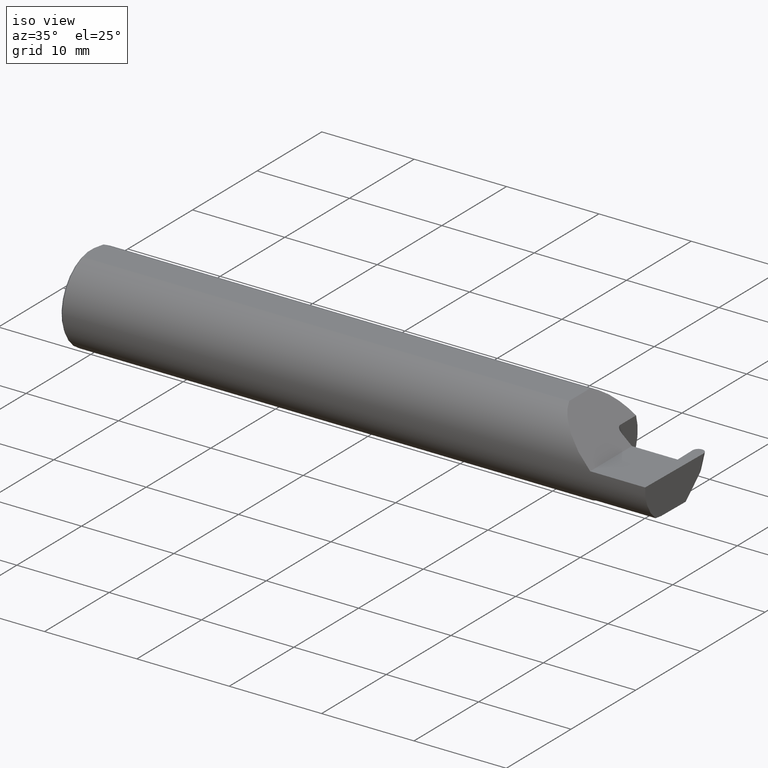
[diagram: clean part render]
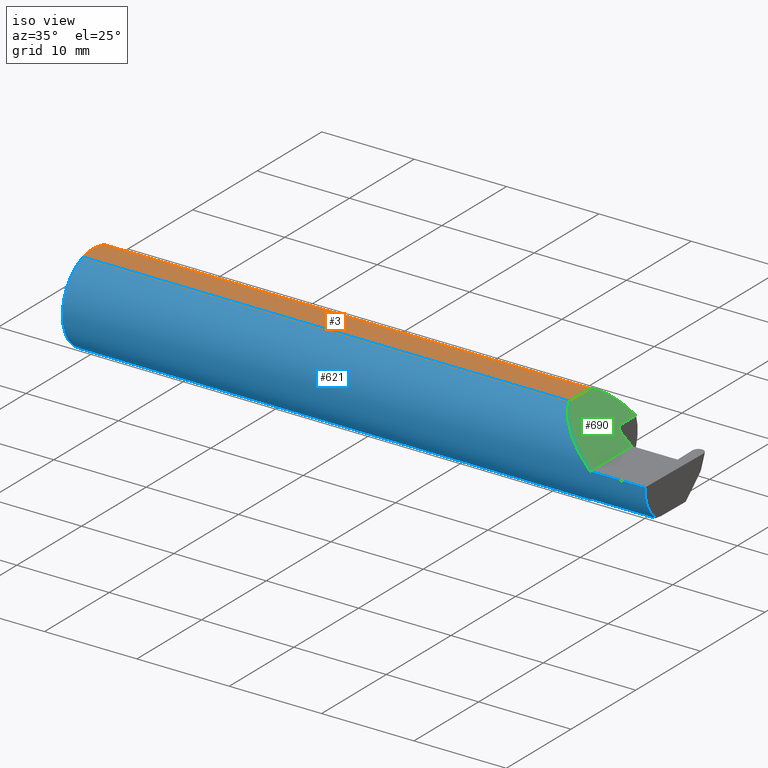
[diagram: same view with three faces highlighted in distinct colors, each labeled with its STEP entity id]
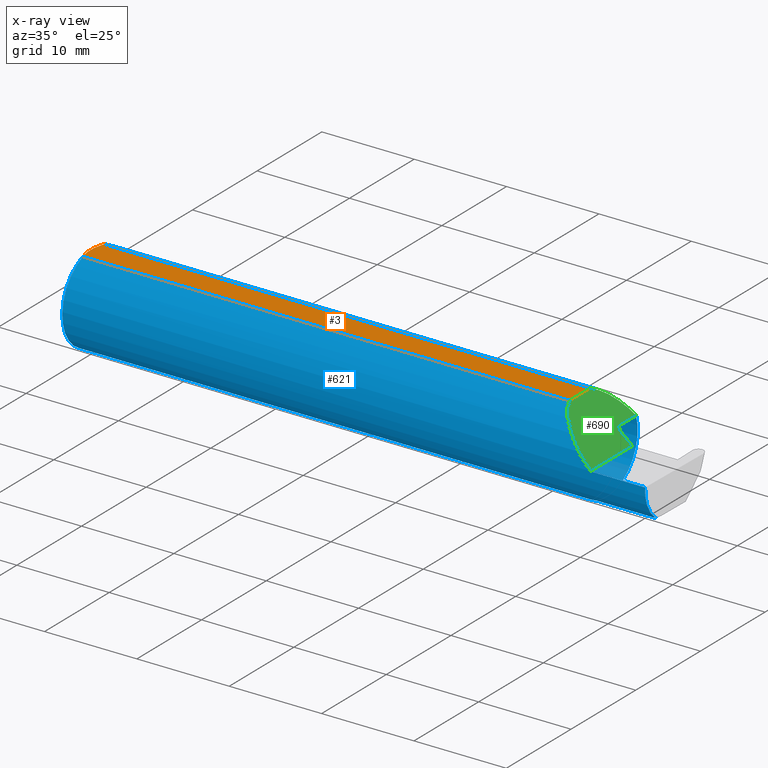
[diagram: x-ray of the same camera — body ghosted, the three highlighted faces saturated]
A machine part, iso view with three faces highlighted in distinct colors.
The next image is the same camera in x-ray (body ghosted, the three faces saturated) — at least one of them is partly hidden behind the body in this view.
Their STEP definitions:

[orange] entity #3 — the highlighted planar face has unit normal (0, 0, 1).
#2 = ORIENTED_EDGE ( 'NONE', *, *, #686, .T. ) ;
#3 = ADVANCED_FACE ( 'NONE', ( #466 ), #675, .T. ) ;
#14 = VECTOR ( 'NONE', #211, 39.37007874015748143 ) ;
#25 = VECTOR ( 'NONE', #32, 39.37007874015748143 ) ;
#27 = VERTEX_POINT ( 'NONE', #37 ) ;
#31 = EDGE_CURVE ( 'NONE', #56, #67, #92, .T. ) ;
#32 = DIRECTION ( 'NONE',  ( 1.000000000000000000, 0.000000000000000000, 0.000000000000000000 ) ) ;
#37 = CARTESIAN_POINT ( 'NONE',  ( 0.000000000000000000, -0.01880691362239451242, 0.1763499999999999235 ) ) ;
#56 = VERTEX_POINT ( 'NONE', #678 ) ;
#67 = VERTEX_POINT ( 'NONE', #409 ) ;
#92 = LINE ( 'NONE', #309, #535 ) ;
#99 = CARTESIAN_POINT ( 'NONE',  ( 0.000000000000000000, 0.01880691362239451242, 0.1763499999999999235 ) ) ;
#108 = VECTOR ( 'NONE', #578, 39.37007874015748143 ) ;
#116 = CARTESIAN_POINT ( 'NONE',  ( 2.083649999999998670, -0.2500000000000000555, 0.1763499999999999235 ) ) ;
#124 = ORIENTED_EDGE ( 'NONE', *, *, #144, .F. ) ;
#144 = EDGE_CURVE ( 'NONE', #287, #27, #256, .T. ) ;
#150 = CARTESIAN_POINT ( 'NONE',  ( 2.876828993045917215, 0.1873499999999998500, 0.1763499999999999235 ) ) ;
#155 = CARTESIAN_POINT ( 'NONE',  ( 0.000000000000000000, 0.01880691362239451242, 0.1763499999999999235 ) ) ;
#163 = CARTESIAN_POINT ( 'NONE',  ( 0.000000000000000000, -0.01880691362239451242, 0.1763499999999999235 ) ) ;
#182 = ORIENTED_EDGE ( 'NONE', *, *, #507, .T. ) ;
#211 = DIRECTION ( 'NONE',  ( 0.000000000000000000, 1.000000000000000000, 0.000000000000000000 ) ) ;
#226 = ORIENTED_EDGE ( 'NONE', *, *, #31, .T. ) ;
#244 = DIRECTION ( 'NONE',  ( -1.000000000000000000, -0.000000000000000000, -0.000000000000000000 ) ) ;
#249 = DIRECTION ( 'NONE',  ( 0.000000000000000000, 0.000000000000000000, 1.000000000000000000 ) ) ;
#256 = B_SPLINE_CURVE_WITH_KNOTS ( 'NONE', 3,
 ( #425, #652, #316, #163 ),
 .UNSPECIFIED., .F., .F.,
 ( 4, 4 ),
 ( 0.009771445421851449736, 0.01092787937989102981 ),
 .UNSPECIFIED. ) ;
#284 = B_SPLINE_CURVE_WITH_KNOTS ( 'NONE', 3,
 ( #99, #499, #531, #434 ),
 .UNSPECIFIED., .F., .F.,
 ( 4, 4 ),
 ( 0.01188664626022267051, 0.01304646959483758001 ),
 .UNSPECIFIED. ) ;
#287 = VERTEX_POINT ( 'NONE', #335 ) ;
#306 = ORIENTED_EDGE ( 'NONE', *, *, #418, .F. ) ;
#309 = CARTESIAN_POINT ( 'NONE',  ( 0.000000000000000000, 0.06325108694718235836, 0.1763499999999999235 ) ) ;
#316 = CARTESIAN_POINT ( 'NONE',  ( 0.001595548104417217512, -0.03385300050298979679, 0.1763499999999999235 ) ) ;
#335 = CARTESIAN_POINT ( 'NONE',  ( 0.009999999999999346217, -0.06325108694718235836, 0.1763499999999999235 ) ) ;
#371 = CARTESIAN_POINT ( 'NONE',  ( 0.000000000000000000, 0.1873499999999998500, 0.1763499999999999235 ) ) ;
#398 = LINE ( 'NONE', #419, #25 ) ;
#401 = CARTESIAN_POINT ( 'NONE',  ( 2.083649999999998670, -0.06325108694718283020, 0.1763499999999999235 ) ) ;
#409 = CARTESIAN_POINT ( 'NONE',  ( 0.009999999999999346217, 0.06325108694718235836, 0.1763499999999999235 ) ) ;
#418 = EDGE_CURVE ( 'NONE', #27, #516, #693, .T. ) ;
#419 = CARTESIAN_POINT ( 'NONE',  ( 0.000000000000000000, -0.06325108694718235836, 0.1763499999999999235 ) ) ;
#425 = CARTESIAN_POINT ( 'NONE',  ( 0.009999999999999346217, -0.06325108694718235836, 0.1763499999999999235 ) ) ;
#434 = CARTESIAN_POINT ( 'NONE',  ( 0.009999999999999346217, 0.06325108694718235836, 0.1763499999999999235 ) ) ;
#466 = FACE_OUTER_BOUND ( 'NONE', #620, .T. ) ;
#478 = DIRECTION ( 'NONE',  ( 1.000000000000000000, 0.000000000000000000, -0.000000000000000000 ) ) ;
#495 = EDGE_CURVE ( 'NONE', #516, #67, #284, .T. ) ;
#499 = CARTESIAN_POINT ( 'NONE',  ( 0.001616639753276218755, 0.03405189565400963680, 0.1763499999999999235 ) ) ;
#507 = EDGE_CURVE ( 'NONE', #608, #56, #699, .T. ) ;
#513 = ORIENTED_EDGE ( 'NONE', *, *, #495, .F. ) ;
#516 = VERTEX_POINT ( 'NONE', #155 ) ;
#518 = AXIS2_PLACEMENT_3D ( 'NONE', #150, #249, #478 ) ;
#531 = CARTESIAN_POINT ( 'NONE',  ( 0.005155213631852355663, 0.04890080824240217866, 0.1763499999999999235 ) ) ;
#535 = VECTOR ( 'NONE', #244, 39.37007874015748143 ) ;
#578 = DIRECTION ( 'NONE',  ( -0.000000000000000000, 1.000000000000000000, -0.000000000000000000 ) ) ;
#608 = VERTEX_POINT ( 'NONE', #401 ) ;
#620 = EDGE_LOOP ( 'NONE', ( #2, #182, #226, #513, #306, #124 ) ) ;
#652 = CARTESIAN_POINT ( 'NONE',  ( 0.005151108632379595466, -0.04888864921576189376, 0.1763499999999999235 ) ) ;
#675 = PLANE ( 'NONE',  #518 ) ;
#678 = CARTESIAN_POINT ( 'NONE',  ( 2.083649999999998670, 0.06325108694718283020, 0.1763499999999999235 ) ) ;
#686 = EDGE_CURVE ( 'NONE', #287, #608, #398, .T. ) ;
#693 = LINE ( 'NONE', #371, #108 ) ;
#699 = LINE ( 'NONE', #116, #14 ) ;

[blue] entity #621 — the highlighted cylindrical surface (partial cylindrical patch) has radius 4.7587 mm, axis along (-1, -0, -0).
#25 = VECTOR ( 'NONE', #32, 39.37007874015748143 ) ;
#30 = CARTESIAN_POINT ( 'NONE',  ( 2.083649999999998670, 0.06325108694718283020, 0.1763499999999999235 ) ) ;
#31 = EDGE_CURVE ( 'NONE', #56, #67, #92, .T. ) ;
#32 = DIRECTION ( 'NONE',  ( 1.000000000000000000, 0.000000000000000000, 0.000000000000000000 ) ) ;
#48 = CARTESIAN_POINT ( 'NONE',  ( 2.225000000000000089, -0.1172600179964003314, -0.1461167706989305870 ) ) ;
#53 = CARTESIAN_POINT ( 'NONE',  ( 2.213203859946834662, -0.1120371980050636346, -0.1501764597936560974 ) ) ;
#56 = VERTEX_POINT ( 'NONE', #678 ) ;
#59 = CARTESIAN_POINT ( 'NONE',  ( 2.260000000000000231, -0.1873499999999999888, 2.939152317953647352E-17 ) ) ;
#67 = VERTEX_POINT ( 'NONE', #409 ) ;
#68 = LINE ( 'NONE', #515, #334 ) ;
#71 = AXIS2_PLACEMENT_3D ( 'NONE', #505, #227, #605 ) ;
#86 =( BOUNDED_CURVE ( )  B_SPLINE_CURVE ( 3, ( #145, #138, #679, #148 ),
 .UNSPECIFIED., .F., .F. ) 
 B_SPLINE_CURVE_WITH_KNOTS ( ( 4, 4 ),
 ( 0.2128041086811283400, 1.107331509589577045 ),
 .UNSPECIFIED. ) 
 CURVE ( )  GEOMETRIC_REPRESENTATION_ITEM ( )  RATIONAL_B_SPLINE_CURVE ( ( 1.000000000000000000, 0.9344226172588800949, 0.9344226172588800949, 1.000000000000000000 ) ) 
 REPRESENTATION_ITEM ( '' )  );
#89 = CARTESIAN_POINT ( 'NONE',  ( 2.103305020982357387, 0.1180511404724818164, 0.1566949790176410395 ) ) ;
#92 = LINE ( 'NONE', #309, #535 ) ;
#96 = ORIENTED_EDGE ( 'NONE', *, *, #525, .F. ) ;
#98 = ORIENTED_EDGE ( 'NONE', *, *, #186, .T. ) ;
#111 = DIRECTION ( 'NONE',  ( 1.000000000000000000, 0.000000000000000000, 0.000000000000000000 ) ) ;
#125 = B_SPLINE_CURVE_WITH_KNOTS ( 'NONE', 3,
 ( #48, #385, #266, #642, #53, #158, #653, #170, #389, #597, #331, #546 ),
 .UNSPECIFIED., .F., .F.,
 ( 4, 2, 2, 2, 2, 4 ),
 ( 1.967976973658592312E-07, 0.0002120314145722268929, 0.0004238660314470878913, 0.0008475352651967972030, 0.001271204498946506677, 0.001694873732696216152 ),
 .UNSPECIFIED. ) ;
#128 = VERTEX_POINT ( 'NONE', #207 ) ;
#132 = DIRECTION ( 'NONE',  ( 0.000000000000000000, 0.000000000000000000, -1.000000000000000000 ) ) ;
#138 = CARTESIAN_POINT ( 'NONE',  ( 2.490517704308097713, -0.1623470442677540093, -0.1099340280425339517 ) ) ;
#145 = CARTESIAN_POINT ( 'NONE',  ( 2.490040979592266890, -0.1172600179964004424, -0.1461167706989304482 ) ) ;
#148 = CARTESIAN_POINT ( 'NONE',  ( 2.493920841729410753, -0.1873499999999999888, 0.000000000000000000 ) ) ;
#158 = CARTESIAN_POINT ( 'NONE',  ( 2.208439486659307338, -0.1064616213911155906, -0.1542305641651501580 ) ) ;
#164 = DIRECTION ( 'NONE',  ( 1.000000000000000000, 4.724792446347703932E-16, 0.000000000000000000 ) ) ;
#170 = CARTESIAN_POINT ( 'NONE',  ( 2.202960551809340917, -0.09317341542745721794, -0.1626248379125198873 ) ) ;
#176 = CARTESIAN_POINT ( 'NONE',  ( 0.009999999999999346217, 0.000000000000000000, 0.000000000000000000 ) ) ;
#186 = EDGE_CURVE ( 'NONE', #287, #274, #696, .T. ) ;
#187 = DIRECTION ( 'NONE',  ( 1.000000000000000000, 0.000000000000000000, 0.000000000000000000 ) ) ;
#206 = CARTESIAN_POINT ( 'NONE',  ( 2.493920841729410753, -0.1873499999999999888, 0.000000000000000000 ) ) ;
#207 = CARTESIAN_POINT ( 'NONE',  ( 2.225000000000000089, -0.1172600179964003314, -0.1461167706989305870 ) ) ;
#221 = DIRECTION ( 'NONE',  ( 0.000000000000000000, 0.000000000000000000, -1.000000000000000000 ) ) ;
#227 = DIRECTION ( 'NONE',  ( -1.000000000000000000, -0.000000000000000000, -0.000000000000000000 ) ) ;
#234 =( BOUNDED_CURVE ( )  B_SPLINE_CURVE ( 3, ( #59, #496, #591, #313 ),
 .UNSPECIFIED., .F., .T. ) 
 B_SPLINE_CURVE_WITH_KNOTS ( ( 4, 4 ),
 ( 4.712388980384688786, 5.938809479923471635 ),
 .UNSPECIFIED. ) 
 CURVE ( )  GEOMETRIC_REPRESENTATION_ITEM ( )  RATIONAL_B_SPLINE_CURVE ( ( 1.000000000000000000, 0.8785364999009659392, 0.8785364999009659392, 1.000000000000000000 ) ) 
 REPRESENTATION_ITEM ( '' )  );
#241 = VERTEX_POINT ( 'NONE', #636 ) ;
#244 = DIRECTION ( 'NONE',  ( -1.000000000000000000, -0.000000000000000000, -0.000000000000000000 ) ) ;
#251 = AXIS2_PLACEMENT_3D ( 'NONE', #355, #164, #271 ) ;
#266 = CARTESIAN_POINT ( 'NONE',  ( 2.219511795768555285, -0.1163687266324232028, -0.1468371510166791849 ) ) ;
#267 = EDGE_LOOP ( 'NONE', ( #500, #493, #349, #504, #328, #98, #272, #458, #672, #340, #96 ) ) ;
#270 = CARTESIAN_POINT ( 'NONE',  ( 0.009999999999999346217, 0.000000000000000000, 0.000000000000000000 ) ) ;
#271 = DIRECTION ( 'NONE',  ( 0.000000000000000000, 1.000000000000000000, 0.000000000000000000 ) ) ;
#272 = ORIENTED_EDGE ( 'NONE', *, *, #587, .T. ) ;
#274 = VERTEX_POINT ( 'NONE', #530 ) ;
#286 = DIRECTION ( 'NONE',  ( -1.000000000000000000, -0.000000000000000000, -0.000000000000000000 ) ) ;
#287 = VERTEX_POINT ( 'NONE', #335 ) ;
#298 = CARTESIAN_POINT ( 'NONE',  ( 2.200000000000000178, 0.1774824568795465018, 0.05999999999999961614 ) ) ;
#309 = CARTESIAN_POINT ( 'NONE',  ( 0.000000000000000000, 0.06325108694718235836, 0.1763499999999999235 ) ) ;
#313 = CARTESIAN_POINT ( 'NONE',  ( 2.083649999999998670, -0.06325108694718283020, 0.1763499999999999235 ) ) ;
#318 = VERTEX_POINT ( 'NONE', #206 ) ;
#323 = VERTEX_POINT ( 'NONE', #676 ) ;
#324 = EDGE_CURVE ( 'NONE', #56, #420, #350, .T. ) ;
#328 = ORIENTED_EDGE ( 'NONE', *, *, #686, .F. ) ;
#331 = CARTESIAN_POINT ( 'NONE',  ( 2.199999999999999289, -0.07368234487347168071, -0.1723418180300748392 ) ) ;
#334 = VECTOR ( 'NONE', #286, 39.37007874015748143 ) ;
#335 = CARTESIAN_POINT ( 'NONE',  ( 0.009999999999999346217, -0.06325108694718235836, 0.1763499999999999235 ) ) ;
#340 = ORIENTED_EDGE ( 'NONE', *, *, #436, .F. ) ;
#341 = LINE ( 'NONE', #551, #472 ) ;
#349 = ORIENTED_EDGE ( 'NONE', *, *, #560, .T. ) ;
#350 =( BOUNDED_CURVE ( )  B_SPLINE_CURVE ( 3, ( #30, #89, #408, #624 ),
 .UNSPECIFIED., .F., .F. ) 
 B_SPLINE_CURVE_WITH_KNOTS ( ( 4, 4 ),
 ( 0.3443758272561143752, 1.244796402594305018 ),
 .UNSPECIFIED. ) 
 CURVE ( )  GEOMETRIC_REPRESENTATION_ITEM ( )  RATIONAL_B_SPLINE_CURVE ( ( 1.000000000000000000, 0.9335704097038357574, 0.9335704097038357574, 1.000000000000000000 ) ) 
 REPRESENTATION_ITEM ( '' )  );
#355 = CARTESIAN_POINT ( 'NONE',  ( 2.200000000000000178, 0.000000000000000000, 0.000000000000000000 ) ) ;
#367 = CIRCLE ( 'NONE', #251, 0.1873499999999999888 ) ;
#376 = EDGE_CURVE ( 'NONE', #323, #318, #86, .T. ) ;
#385 = CARTESIAN_POINT ( 'NONE',  ( 2.222174967710399685, -0.1172600179964003314, -0.1461167706989306703 ) ) ;
#389 = CARTESIAN_POINT ( 'NONE',  ( 2.201843912362378308, -0.08846956905169064966, -0.1652353808078973751 ) ) ;
#398 = LINE ( 'NONE', #419, #25 ) ;
#401 = CARTESIAN_POINT ( 'NONE',  ( 2.083649999999998670, -0.06325108694718283020, 0.1763499999999999235 ) ) ;
#408 = CARTESIAN_POINT ( 'NONE',  ( 2.144848040052163896, 0.1588376980957759976, 0.1151519599478345868 ) ) ;
#409 = CARTESIAN_POINT ( 'NONE',  ( 0.009999999999999346217, 0.06325108694718235836, 0.1763499999999999235 ) ) ;
#419 = CARTESIAN_POINT ( 'NONE',  ( 0.000000000000000000, -0.06325108694718235836, 0.1763499999999999235 ) ) ;
#420 = VERTEX_POINT ( 'NONE', #298 ) ;
#436 = EDGE_CURVE ( 'NONE', #643, #420, #367, .T. ) ;
#451 = CYLINDRICAL_SURFACE ( 'NONE', #71, 0.1873499999999999888 ) ;
#458 = ORIENTED_EDGE ( 'NONE', *, *, #31, .F. ) ;
#472 = VECTOR ( 'NONE', #659, 39.37007874015748143 ) ;
#476 = EDGE_CURVE ( 'NONE', #241, #608, #234, .T. ) ;
#493 = ORIENTED_EDGE ( 'NONE', *, *, #376, .T. ) ;
#496 = CARTESIAN_POINT ( 'NONE',  ( 2.178182770154592163, -0.1873500000000000443, 0.08181722984540684696 ) ) ;
#500 = ORIENTED_EDGE ( 'NONE', *, *, #637, .F. ) ;
#504 = ORIENTED_EDGE ( 'NONE', *, *, #476, .T. ) ;
#505 = CARTESIAN_POINT ( 'NONE',  ( 0.000000000000000000, 0.000000000000000000, 0.000000000000000000 ) ) ;
#508 = AXIS2_PLACEMENT_3D ( 'NONE', #176, #187, #132 ) ;
#515 = CARTESIAN_POINT ( 'NONE',  ( 3.749399456654646757E-32, -0.1873499999999999610, 3.061616997868383634E-16 ) ) ;
#525 = EDGE_CURVE ( 'NONE', #128, #643, #125, .T. ) ;
#530 = CARTESIAN_POINT ( 'NONE',  ( 0.009999999999999346217, 0.000000000000000000, -0.1873499999999999888 ) ) ;
#535 = VECTOR ( 'NONE', #244, 39.37007874015748143 ) ;
#546 = CARTESIAN_POINT ( 'NONE',  ( 2.200000000000000178, -0.06851976604679038685, -0.1743704796142199753 ) ) ;
#548 = CIRCLE ( 'NONE', #508, 0.1873499999999999888 ) ;
#551 = CARTESIAN_POINT ( 'NONE',  ( 2.338979999999999837, -0.1172600179964005118, -0.1461167706989304482 ) ) ;
#560 = EDGE_CURVE ( 'NONE', #318, #241, #68, .T. ) ;
#587 = EDGE_CURVE ( 'NONE', #274, #67, #548, .T. ) ;
#591 = CARTESIAN_POINT ( 'NONE',  ( 2.111272250967329622, -0.1402645296119147678, 0.1487277490326685825 ) ) ;
#597 = CARTESIAN_POINT ( 'NONE',  ( 2.200358271039144054, -0.07873626113568053808, -0.1700887912276896896 ) ) ;
#605 = DIRECTION ( 'NONE',  ( 0.000000000000000000, 0.000000000000000000, 1.000000000000000000 ) ) ;
#608 = VERTEX_POINT ( 'NONE', #401 ) ;
#621 = ADVANCED_FACE ( 'NONE', ( #668 ), #451, .T. ) ;
#624 = CARTESIAN_POINT ( 'NONE',  ( 2.200000000000000178, 0.1774824568795465018, 0.05999999999999961614 ) ) ;
#636 = CARTESIAN_POINT ( 'NONE',  ( 2.260000000000000231, -0.1873499999999999888, 2.939152317953647352E-17 ) ) ;
#637 = EDGE_CURVE ( 'NONE', #323, #128, #341, .T. ) ;
#642 = CARTESIAN_POINT ( 'NONE',  ( 2.215028532764138802, -0.1137241120808233086, -0.1488947809299406289 ) ) ;
#643 = VERTEX_POINT ( 'NONE', #663 ) ;
#653 = CARTESIAN_POINT ( 'NONE',  ( 2.206304331342288094, -0.1022198306720688288, -0.1570962426853820260 ) ) ;
#659 = DIRECTION ( 'NONE',  ( -1.000000000000000000, -4.724792446347703932E-16, -0.000000000000000000 ) ) ;
#663 = CARTESIAN_POINT ( 'NONE',  ( 2.200000000000000178, -0.06851976604679038685, -0.1743704796142199753 ) ) ;
#668 = FACE_OUTER_BOUND ( 'NONE', #267, .T. ) ;
#670 = AXIS2_PLACEMENT_3D ( 'NONE', #270, #111, #221 ) ;
#672 = ORIENTED_EDGE ( 'NONE', *, *, #324, .T. ) ;
#676 = CARTESIAN_POINT ( 'NONE',  ( 2.490040979592266890, -0.1172600179964004424, -0.1461167706989304482 ) ) ;
#678 = CARTESIAN_POINT ( 'NONE',  ( 2.083649999999998670, 0.06325108694718283020, 0.1763499999999999235 ) ) ;
#679 = CARTESIAN_POINT ( 'NONE',  ( 2.491901754046578876, -0.1873499999999999055, -0.05781030015605129885 ) ) ;
#686 = EDGE_CURVE ( 'NONE', #287, #608, #398, .T. ) ;
#696 = CIRCLE ( 'NONE', #670, 0.1873499999999999888 ) ;

[green] entity #690 — the highlighted planar face has unit normal (-0.7071, 0, -0.7071).
#14 = VECTOR ( 'NONE', #211, 39.37007874015748143 ) ;
#26 = VECTOR ( 'NONE', #391, 39.37007874015748143 ) ;
#30 = CARTESIAN_POINT ( 'NONE',  ( 2.083649999999998670, 0.06325108694718283020, 0.1763499999999999235 ) ) ;
#55 = CARTESIAN_POINT ( 'NONE',  ( 2.222331837506049901, 0.06186927743178083361, 0.03766816249395005256 ) ) ;
#56 = VERTEX_POINT ( 'NONE', #678 ) ;
#59 = CARTESIAN_POINT ( 'NONE',  ( 2.260000000000000231, -0.1873499999999999888, 2.939152317953647352E-17 ) ) ;
#89 = CARTESIAN_POINT ( 'NONE',  ( 2.103305020982357387, 0.1180511404724818164, 0.1566949790176410395 ) ) ;
#101 = CARTESIAN_POINT ( 'NONE',  ( 2.206491315391052144, 0.06519110945230538467, 0.05350868460894756679 ) ) ;
#102 = ORIENTED_EDGE ( 'NONE', *, *, #370, .F. ) ;
#109 = EDGE_CURVE ( 'NONE', #420, #281, #577, .T. ) ;
#115 = CARTESIAN_POINT ( 'NONE',  ( 2.260000000000000231, 0.06664999999999984825, 2.939152317953647352E-17 ) ) ;
#116 = CARTESIAN_POINT ( 'NONE',  ( 2.083649999999998670, -0.2500000000000000555, 0.1763499999999999235 ) ) ;
#142 = DIRECTION ( 'NONE',  ( -0.7071067811865441310, 0.000000000000000000, -0.7071067811865510144 ) ) ;
#146 = CARTESIAN_POINT ( 'NONE',  ( 2.260000000000000231, -0.2500000000000000555, 2.939152317953647352E-17 ) ) ;
#154 = CARTESIAN_POINT ( 'NONE',  ( 2.200000000000000178, 0.08104282222773610822, 0.05999999999999956757 ) ) ;
#172 = CARTESIAN_POINT ( 'NONE',  ( 2.260000000000000231, -0.2500000000000000555, 2.939152317953647352E-17 ) ) ;
#173 = CARTESIAN_POINT ( 'NONE',  ( 2.219643712645606559, 0.06157137645965355538, 0.04035628735439349829 ) ) ;
#200 = CARTESIAN_POINT ( 'NONE',  ( 2.236476718690367793, 0.06526343940705725544, 0.02352328130963212555 ) ) ;
#211 = DIRECTION ( 'NONE',  ( 0.000000000000000000, 1.000000000000000000, 0.000000000000000000 ) ) ;
#219 = CARTESIAN_POINT ( 'NONE',  ( 2.225000000000000089, 0.06250952145814826777, 0.03500000000000007272 ) ) ;
#234 =( BOUNDED_CURVE ( )  B_SPLINE_CURVE ( 3, ( #59, #496, #591, #313 ),
 .UNSPECIFIED., .F., .T. ) 
 B_SPLINE_CURVE_WITH_KNOTS ( ( 4, 4 ),
 ( 4.712388980384688786, 5.938809479923471635 ),
 .UNSPECIFIED. ) 
 CURVE ( )  GEOMETRIC_REPRESENTATION_ITEM ( )  RATIONAL_B_SPLINE_CURVE ( ( 1.000000000000000000, 0.8785364999009659392, 0.8785364999009659392, 1.000000000000000000 ) ) 
 REPRESENTATION_ITEM ( '' )  );
#236 = VERTEX_POINT ( 'NONE', #115 ) ;
#241 = VERTEX_POINT ( 'NONE', #636 ) ;
#257 = EDGE_CURVE ( 'NONE', #241, #236, #694, .T. ) ;
#281 = VERTEX_POINT ( 'NONE', #154 ) ;
#298 = CARTESIAN_POINT ( 'NONE',  ( 2.200000000000000178, 0.1774824568795465018, 0.05999999999999961614 ) ) ;
#313 = CARTESIAN_POINT ( 'NONE',  ( 2.083649999999998670, -0.06325108694718283020, 0.1763499999999999235 ) ) ;
#324 = EDGE_CURVE ( 'NONE', #56, #420, #350, .T. ) ;
#330 = CARTESIAN_POINT ( 'NONE',  ( 2.200000000000000178, -0.2500000000000001110, 0.05999999999999940797 ) ) ;
#346 = ORIENTED_EDGE ( 'NONE', *, *, #507, .F. ) ;
#350 =( BOUNDED_CURVE ( )  B_SPLINE_CURVE ( 3, ( #30, #89, #408, #624 ),
 .UNSPECIFIED., .F., .F. ) 
 B_SPLINE_CURVE_WITH_KNOTS ( ( 4, 4 ),
 ( 0.3443758272561143752, 1.244796402594305018 ),
 .UNSPECIFIED. ) 
 CURVE ( )  GEOMETRIC_REPRESENTATION_ITEM ( )  RATIONAL_B_SPLINE_CURVE ( ( 1.000000000000000000, 0.9335704097038357574, 0.9335704097038357574, 1.000000000000000000 ) ) 
 REPRESENTATION_ITEM ( '' )  );
#370 = EDGE_CURVE ( 'NONE', #452, #236, #588, .T. ) ;
#375 = EDGE_LOOP ( 'NONE', ( #102, #534, #393, #606, #346, #539, #552 ) ) ;
#391 = DIRECTION ( 'NONE',  ( -0.000000000000000000, 1.000000000000000000, -0.000000000000000000 ) ) ;
#393 = ORIENTED_EDGE ( 'NONE', *, *, #109, .F. ) ;
#401 = CARTESIAN_POINT ( 'NONE',  ( 2.083649999999998670, -0.06325108694718283020, 0.1763499999999999235 ) ) ;
#408 = CARTESIAN_POINT ( 'NONE',  ( 2.144848040052163896, 0.1588376980957759976, 0.1151519599478345868 ) ) ;
#420 = VERTEX_POINT ( 'NONE', #298 ) ;
#424 = AXIS2_PLACEMENT_3D ( 'NONE', #146, #142, #615 ) ;
#426 = CARTESIAN_POINT ( 'NONE',  ( 2.225000000000000089, 0.06250952145814826777, 0.03500000000000007272 ) ) ;
#443 = CARTESIAN_POINT ( 'NONE',  ( 2.211575684638518169, 0.06248591091235530803, 0.04842431536148222859 ) ) ;
#452 = VERTEX_POINT ( 'NONE', #426 ) ;
#469 = EDGE_CURVE ( 'NONE', #281, #452, #594, .T. ) ;
#476 = EDGE_CURVE ( 'NONE', #241, #608, #234, .T. ) ;
#488 = CARTESIAN_POINT ( 'NONE',  ( 2.199999999999999734, 0.07723724220654794304, 0.05999999999999976186 ) ) ;
#492 = CARTESIAN_POINT ( 'NONE',  ( 2.204146777195072016, 0.06733032564037061407, 0.05585322280492719532 ) ) ;
#496 = CARTESIAN_POINT ( 'NONE',  ( 2.178182770154592163, -0.1873500000000000443, 0.08181722984540684696 ) ) ;
#507 = EDGE_CURVE ( 'NONE', #608, #56, #699, .T. ) ;
#533 = CARTESIAN_POINT ( 'NONE',  ( 2.200000000000000178, 0.08104282222773610822, 0.05999999999999956757 ) ) ;
#534 = ORIENTED_EDGE ( 'NONE', *, *, #469, .F. ) ;
#538 = CARTESIAN_POINT ( 'NONE',  ( 2.200842198961673102, 0.07338839382613032702, 0.05915780103832719156 ) ) ;
#539 = ORIENTED_EDGE ( 'NONE', *, *, #476, .F. ) ;
#549 = VECTOR ( 'NONE', #703, 39.37007874015748143 ) ;
#552 = ORIENTED_EDGE ( 'NONE', *, *, #257, .T. ) ;
#573 = CARTESIAN_POINT ( 'NONE',  ( 2.248197494504676097, 0.06665000000000000091, 0.01180250549532440955 ) ) ;
#577 = LINE ( 'NONE', #330, #549 ) ;
#584 = CARTESIAN_POINT ( 'NONE',  ( 2.214233757172356043, 0.06188798250606979828, 0.04576624282764353568 ) ) ;
#588 =( BOUNDED_CURVE ( )  B_SPLINE_CURVE ( 3, ( #633, #200, #573, #630 ),
 .UNSPECIFIED., .F., .F. ) 
 B_SPLINE_CURVE_WITH_KNOTS ( ( 4, 4 ),
 ( 1.335292090074097437, 1.570796326794897002 ),
 .UNSPECIFIED. ) 
 CURVE ( )  GEOMETRIC_REPRESENTATION_ITEM ( )  RATIONAL_B_SPLINE_CURVE ( ( 1.000000000000000000, 0.9953834841226971708, 0.9953834841226971708, 1.000000000000000000 ) ) 
 REPRESENTATION_ITEM ( '' )  );
#591 = CARTESIAN_POINT ( 'NONE',  ( 2.111272250967329622, -0.1402645296119147678, 0.1487277490326685825 ) ) ;
#594 = B_SPLINE_CURVE_WITH_KNOTS ( 'NONE', 3,
 ( #533, #488, #538, #492, #101, #443, #584, #173, #55, #219 ),
 .UNSPECIFIED., .F., .F.,
 ( 4, 2, 2, 2, 4 ),
 ( 0.0002788109322551135961, 0.0005687008269983687657, 0.0008585907217416240437, 0.001148480616484879322, 0.001438370511228134491 ),
 .UNSPECIFIED. ) ;
#606 = ORIENTED_EDGE ( 'NONE', *, *, #324, .F. ) ;
#608 = VERTEX_POINT ( 'NONE', #401 ) ;
#615 = DIRECTION ( 'NONE',  ( -0.7071067811865509034, 0.000000000000000000, 0.7071067811865440200 ) ) ;
#624 = CARTESIAN_POINT ( 'NONE',  ( 2.200000000000000178, 0.1774824568795465018, 0.05999999999999961614 ) ) ;
#625 = PLANE ( 'NONE',  #424 ) ;
#630 = CARTESIAN_POINT ( 'NONE',  ( 2.260000000000000231, 0.06664999999999984825, 2.939152317953647352E-17 ) ) ;
#633 = CARTESIAN_POINT ( 'NONE',  ( 2.225000000000000089, 0.06250952145814826777, 0.03500000000000007272 ) ) ;
#636 = CARTESIAN_POINT ( 'NONE',  ( 2.260000000000000231, -0.1873499999999999888, 2.939152317953647352E-17 ) ) ;
#677 = FACE_OUTER_BOUND ( 'NONE', #375, .T. ) ;
#678 = CARTESIAN_POINT ( 'NONE',  ( 2.083649999999998670, 0.06325108694718283020, 0.1763499999999999235 ) ) ;
#690 = ADVANCED_FACE ( 'NONE', ( #677 ), #625, .F. ) ;
#694 = LINE ( 'NONE', #172, #26 ) ;
#699 = LINE ( 'NONE', #116, #14 ) ;
#703 = DIRECTION ( 'NONE',  ( 4.724792446347703932E-16, -1.000000000000000000, -4.724792446347657586E-16 ) ) ;